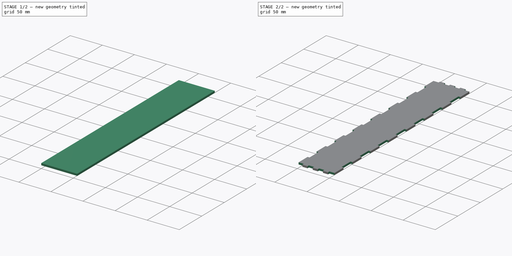
[diagram: build sequence overview — one tinted view per stage of 2, left to right]
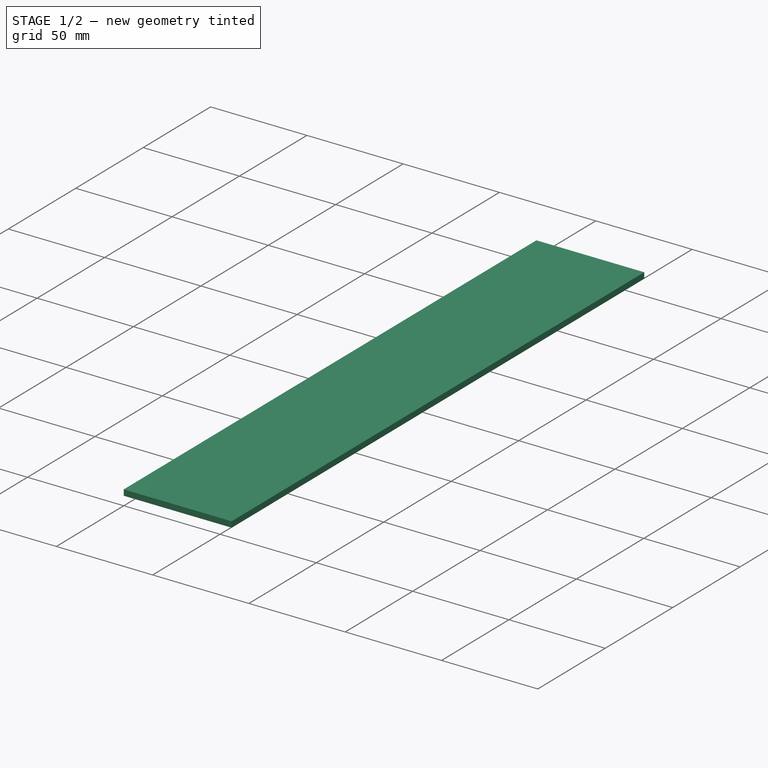
[diagram: stage 1 of 2 — iso view after this stage's code; geometry added in this stage tinted green]
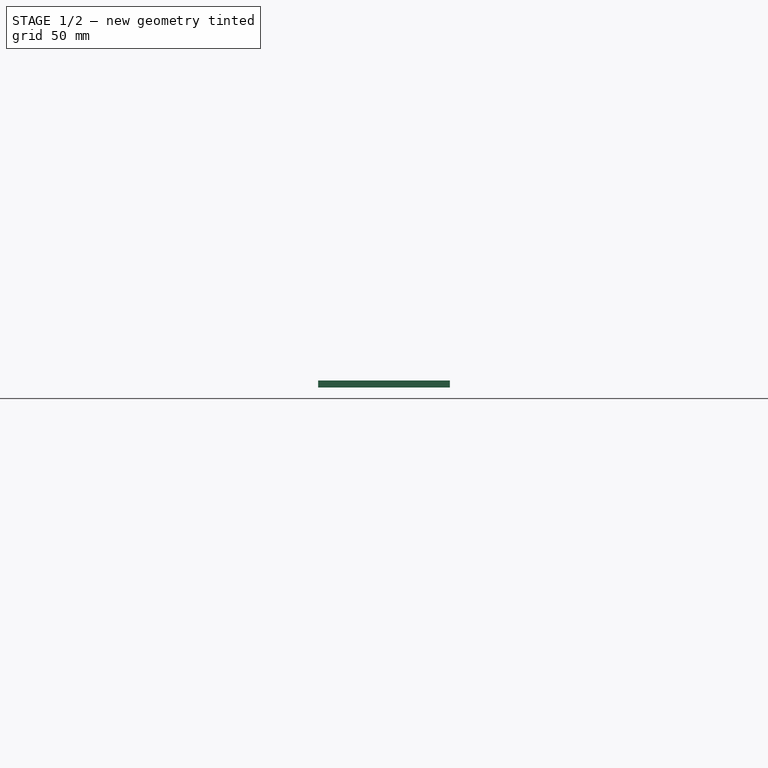
[diagram: stage 1 of 2 — front view after this stage's code; geometry added in this stage tinted green]
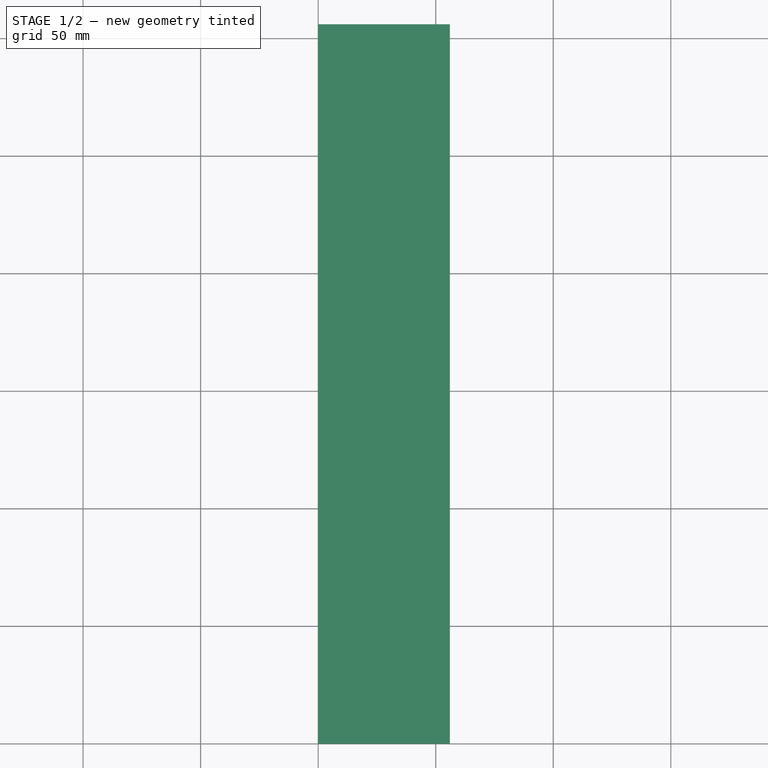
[diagram: stage 1 of 2 — top view after this stage's code; geometry added in this stage tinted green]
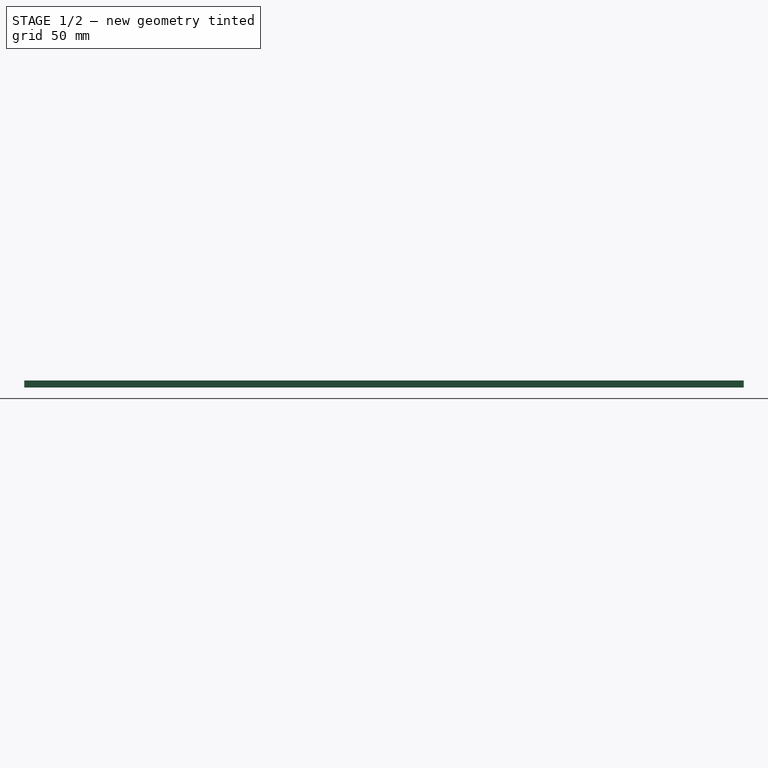
[diagram: stage 1 of 2 — right view after this stage's code; geometry added in this stage tinted green]
FCSTD DOCUMENT  (FreeCAD 0.19R24366 (Git))
Label: mdo-side
License: All rights reserved
LicenseURL: http://en.wikipedia.org/wiki/All_rights_reserved
objects: Sketcher::SketchObject×2, PartDesign::Pad×1, PartDesign::Pocket×1, PartDesign::Body×1, TechDraw::DrawSVGTemplate×1, TechDraw::DrawViewPart×1, TechDraw::DrawPage×1
note: 7 computed .brp shape members not serialized (recipe doc carries the construction recipe); baked Part::Feature solids carry a one-line shape summary decoded from their .brp

FEATURE [Sketcher::SketchObject] Sketch
  FullyConstrained = true
  MapMode = 5
  Support = -> [XY_Plane]
  sketch-geometry (4):
    g0: LineSegment StartX=0 StartY=0 StartZ=0 EndX=56 EndY=0 EndZ=0
    g1: LineSegment StartX=56 StartY=0 StartZ=0 EndX=56 EndY=306 EndZ=0
    g2: LineSegment StartX=56 StartY=306 StartZ=0 EndX=0 EndY=306 EndZ=0
    g3: LineSegment StartX=0 StartY=306 StartZ=0 EndX=0 EndY=0 EndZ=0
  constraints (11):
    c: Coincident(g0,g1)
    c: Coincident(g1,g2)
    c: Coincident(g2,g3)
    c: Coincident(g3,g0)
    c: Horizontal(g0)
    c: Horizontal(g2)
    c: Vertical(g1)
    c: Vertical(g3)
    c: Coincident(g0,g-1)
    c: DistanceX(g0,g0) = 56
    c: DistanceY(g1,g1) = 306
FEATURE [PartDesign::Pad] Pad
  Direction = (1,1,1)
  Length = 3
  Length2 = 100
  Profile = -> Sketch
  Type = 0
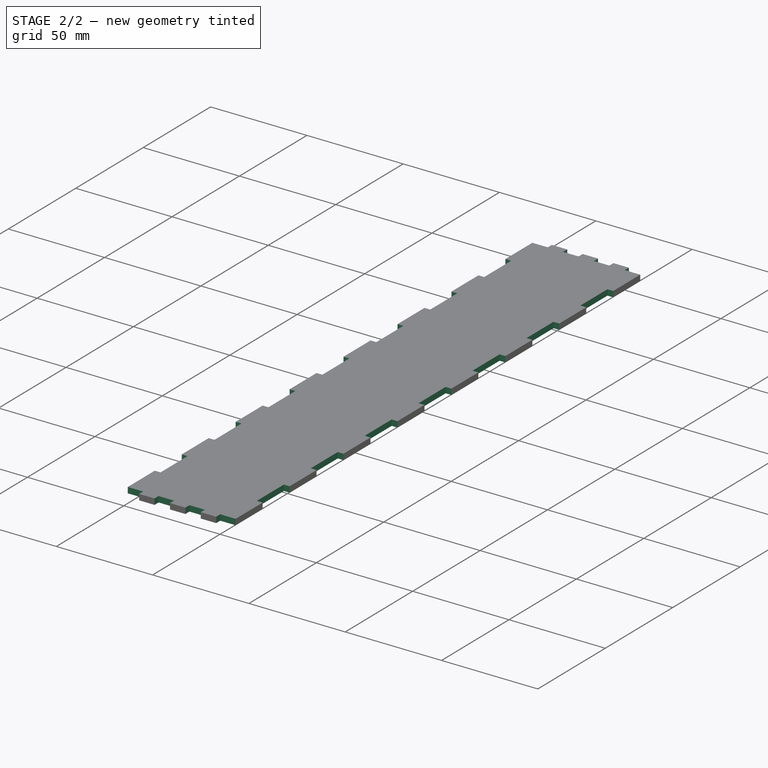
[diagram: stage 2 of 2 — iso view after this stage's code; geometry added in this stage tinted green]
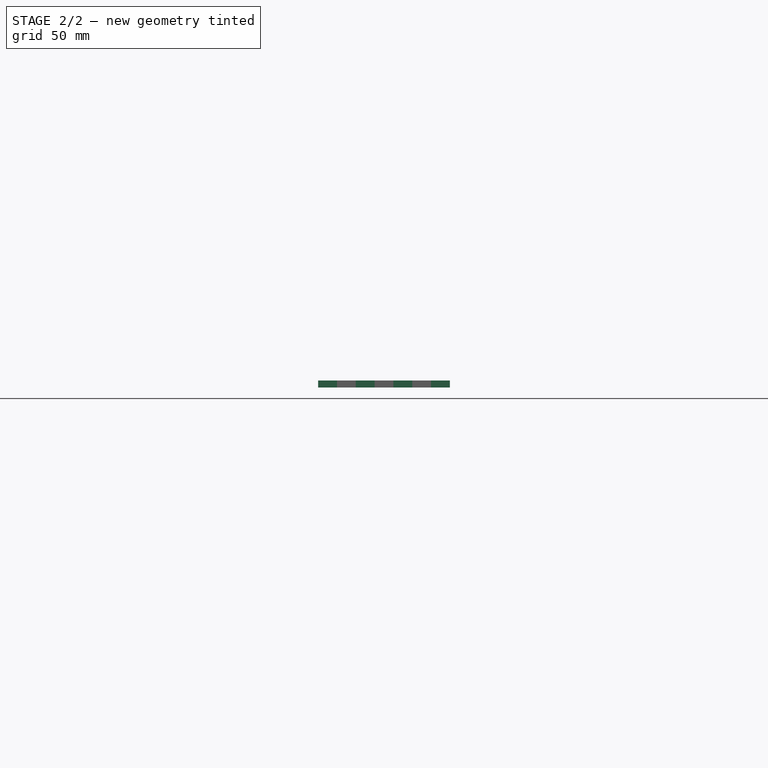
[diagram: stage 2 of 2 — front view after this stage's code; geometry added in this stage tinted green]
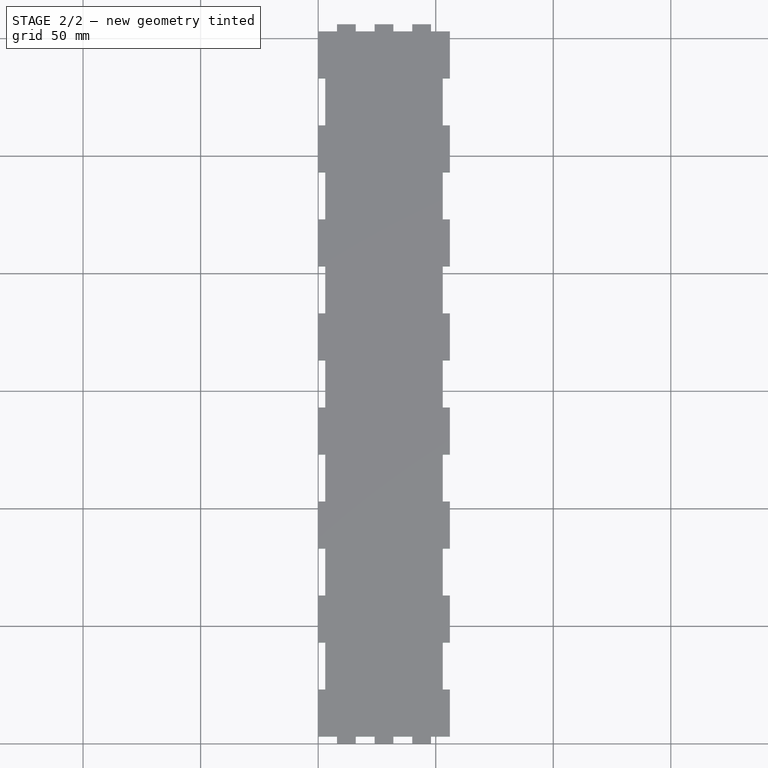
[diagram: stage 2 of 2 — top view after this stage's code; geometry added in this stage tinted green]
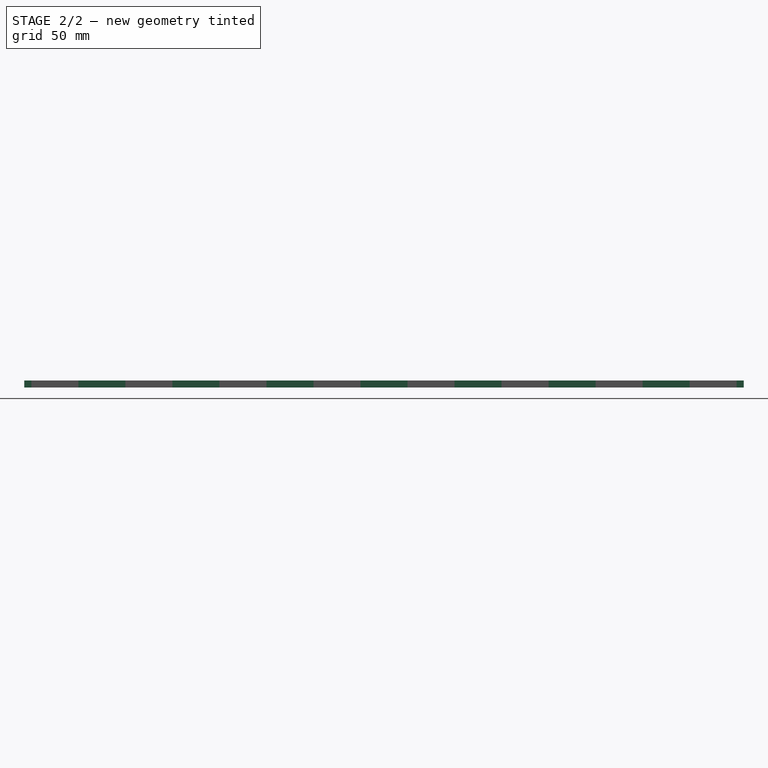
[diagram: stage 2 of 2 — right view after this stage's code; geometry added in this stage tinted green]
FEATURE [Sketcher::SketchObject] Sketch001
  FullyConstrained = true
  MapMode = 5
  Placement = pos=(0,0,3) rot=(0,0,1;0rad)
  Support = -> [Pad]
  sketch-geometry (108):
    g0: LineSegment StartX=0 StartY=3 StartZ=0 EndX=8 EndY=3 EndZ=0
    g1: LineSegment StartX=8 StartY=3 StartZ=0 EndX=8 EndY=0 EndZ=0
    g2: LineSegment StartX=8 StartY=0 StartZ=0 EndX=0 EndY=0 EndZ=0
    g3: LineSegment StartX=0 StartY=0 StartZ=0 EndX=0 EndY=3 EndZ=0
    g4: LineSegment StartX=16 StartY=3 StartZ=0 EndX=24 EndY=3 EndZ=0
    g5: LineSegment StartX=24 StartY=3 StartZ=0 EndX=24 EndY=0 EndZ=0
    g6: LineSegment StartX=24 StartY=0 StartZ=0 EndX=16 EndY=0 EndZ=0
    g7: LineSegment StartX=16 StartY=0 StartZ=0 EndX=16 EndY=3 EndZ=0
    g8: LineSegment StartX=0 StartY=3 StartZ=0 EndX=16 EndY=3 EndZ=0
    g9: LineSegment StartX=32 StartY=3 StartZ=0 EndX=40 EndY=3 EndZ=0
    g10: LineSegment StartX=40 StartY=3 StartZ=0 EndX=40 EndY=0 EndZ=0
    g11: LineSegment StartX=40 StartY=0 StartZ=0 EndX=32 EndY=0 EndZ=0
    g12: LineSegment StartX=32 StartY=0 StartZ=0 EndX=32 EndY=3 EndZ=0
    g13: LineSegment StartX=16 StartY=3 StartZ=0 EndX=32 EndY=3 EndZ=0
    g14: LineSegment StartX=48 StartY=3 StartZ=0 EndX=56 EndY=3 EndZ=0
    g15: LineSegment StartX=56 StartY=3 StartZ=0 EndX=56 EndY=0 EndZ=0
    g16: LineSegment StartX=56 StartY=0 StartZ=0 EndX=48 EndY=0 EndZ=0
    g17: LineSegment StartX=48 StartY=0 StartZ=0 EndX=48 EndY=3 EndZ=0
    g18: LineSegment StartX=32 StartY=3 StartZ=0 EndX=48 EndY=3 EndZ=0
    g19: LineSegment StartX=0 StartY=306 StartZ=0 EndX=8 EndY=306 EndZ=0
    g20: LineSegment StartX=8 StartY=306 StartZ=0 EndX=8 EndY=303 EndZ=0
    g21: LineSegment StartX=0 StartY=303 StartZ=0 EndX=0 EndY=306 EndZ=0
    g22: LineSegment StartX=16 StartY=306 StartZ=0 EndX=24 EndY=306 EndZ=0
    g23: LineSegment StartX=24 StartY=306 StartZ=0 EndX=24 EndY=303 EndZ=0
    g24: LineSegment StartX=24 StartY=303 StartZ=0 EndX=16 EndY=303 EndZ=0
    g25: LineSegment StartX=16 StartY=303 StartZ=0 EndX=16 EndY=306 EndZ=0
    g26: LineSegment StartX=0 StartY=306 StartZ=0 EndX=16 EndY=306 EndZ=0
    g27: LineSegment StartX=32 StartY=306 StartZ=0 EndX=40 EndY=306 EndZ=0
    g28: LineSegment StartX=40 StartY=306 StartZ=0 EndX=40 EndY=303 EndZ=0
    g29: LineSegment StartX=40 StartY=303 StartZ=0 EndX=32 EndY=303 EndZ=0
    g30: LineSegment StartX=32 StartY=303 StartZ=0 EndX=32 EndY=306 EndZ=0
    g31: LineSegment StartX=16 StartY=306 StartZ=0 EndX=32 EndY=306 EndZ=0
    g32: LineSegment StartX=48 StartY=306 StartZ=0 EndX=56 EndY=306 EndZ=0
    g33: LineSegment StartX=56 StartY=306 StartZ=0 EndX=56 EndY=303 EndZ=0
    g34: LineSegment StartX=48 StartY=303 StartZ=0 EndX=48 EndY=306 EndZ=0
    g35: LineSegment StartX=32 StartY=306 StartZ=0 EndX=48 EndY=306 EndZ=0
    g36: LineSegment StartX=3 StartY=3.01 StartZ=0 EndX=0 EndY=3.01 EndZ=0
    g37: LineSegment StartX=56 StartY=3.01 StartZ=0 EndX=53 EndY=3.01 EndZ=0
    g38: LineSegment StartX=0 StartY=303 StartZ=0 EndX=8 EndY=303 EndZ=0
    g39: LineSegment StartX=48 StartY=303 StartZ=0 EndX=56 EndY=303 EndZ=0
    g40: LineSegment StartX=0 StartY=43 StartZ=0 EndX=3 EndY=43 EndZ=0
    g41: LineSegment StartX=3 StartY=43 StartZ=0 EndX=3 EndY=23 EndZ=0
    g42: LineSegment StartX=3 StartY=23 StartZ=0 EndX=0 EndY=23 EndZ=0
    g43: LineSegment StartX=0 StartY=23 StartZ=0 EndX=0 EndY=43 EndZ=0
    g44: LineSegment StartX=2.4e-15 StartY=83 StartZ=0 EndX=3 EndY=83 EndZ=0
    g45: LineSegment StartX=3 StartY=83 StartZ=0 EndX=3 EndY=63 EndZ=0
    g46: LineSegment StartX=3 StartY=63 StartZ=0 EndX=2.7e-15 EndY=63 EndZ=0
    g47: LineSegment StartX=2.4e-15 StartY=63 StartZ=0 EndX=2.4e-15 EndY=83 EndZ=0
    g48: LineSegment StartX=0 StartY=43 StartZ=0 EndX=2.4e-15 EndY=83 EndZ=0
    g49: LineSegment StartX=4.9e-15 StartY=123 StartZ=0 EndX=3 EndY=123 EndZ=0
    g50: LineSegment StartX=3 StartY=123 StartZ=0 EndX=3 EndY=103 EndZ=0
    g51: LineSegment StartX=3 StartY=103 StartZ=0 EndX=4.9e-15 EndY=103 EndZ=0
    g52: LineSegment StartX=4.9e-15 StartY=103 StartZ=0 EndX=4.9e-15 EndY=123 EndZ=0
    g53: LineSegment StartX=2.4e-15 StartY=83 StartZ=0 EndX=4.9e-15 EndY=123 EndZ=0
    g54: LineSegment StartX=7.5e-15 StartY=163 StartZ=0 EndX=3 EndY=163 EndZ=0
    g55: LineSegment StartX=3 StartY=163 StartZ=0 EndX=3 EndY=143 EndZ=0
    g56: LineSegment StartX=3 StartY=143 StartZ=0 EndX=7.5e-15 EndY=143 EndZ=0
    g57: LineSegment StartX=7.5e-15 StartY=143 StartZ=0 EndX=7.5e-15 EndY=163 EndZ=0
    g58: LineSegment StartX=4.9e-15 StartY=123 StartZ=0 EndX=7.5e-15 EndY=163 EndZ=0
    g59: LineSegment StartX=9.8e-15 StartY=203 StartZ=0 EndX=3 EndY=203 EndZ=0
    g60: LineSegment StartX=3 StartY=203 StartZ=0 EndX=3 EndY=183 EndZ=0
    g61: LineSegment StartX=3 StartY=183 StartZ=0 EndX=9.8e-15 EndY=183 EndZ=0
    g62: LineSegment StartX=9.8e-15 StartY=183 StartZ=0 EndX=9.8e-15 EndY=203 EndZ=0
    g63: LineSegment StartX=7.5e-15 StartY=163 StartZ=0 EndX=9.8e-15 EndY=203 EndZ=0
    g64: LineSegment StartX=1.24e-14 StartY=243 StartZ=0 EndX=3 EndY=243 EndZ=0
    g65: LineSegment StartX=3 StartY=243 StartZ=0 EndX=3 EndY=223 EndZ=0
    g66: LineSegment StartX=3 StartY=223 StartZ=0 EndX=1.24e-14 EndY=223 EndZ=0
    g67: LineSegment StartX=1.24e-14 StartY=223 StartZ=0 EndX=1.24e-14 EndY=243 EndZ=0
    g68: LineSegment StartX=9.8e-15 StartY=203 StartZ=0 EndX=1.24e-14 EndY=243 EndZ=0
    g69: LineSegment StartX=1.47e-14 StartY=283 StartZ=0 EndX=3 EndY=283 EndZ=0
    g70: LineSegment StartX=3 StartY=283 StartZ=0 EndX=3 EndY=263 EndZ=0
    g71: LineSegment StartX=3 StartY=263 StartZ=0 EndX=1.47e-14 EndY=263 EndZ=0
    g72: LineSegment StartX=1.47e-14 StartY=263 StartZ=0 EndX=1.47e-14 EndY=283 EndZ=0
    g73: LineSegment StartX=1.24e-14 StartY=243 StartZ=0 EndX=1.47e-14 EndY=283 EndZ=0
    g74: LineSegment StartX=53 StartY=43 StartZ=0 EndX=56 EndY=43 EndZ=0
    g75: LineSegment StartX=56 StartY=43 StartZ=0 EndX=56 EndY=23 EndZ=0
    g76: LineSegment StartX=56 StartY=23 StartZ=0 EndX=53 EndY=23 EndZ=0
    g77: LineSegment StartX=53 StartY=23 StartZ=0 EndX=53 EndY=43 EndZ=0
    g78: LineSegment StartX=53 StartY=83 StartZ=0 EndX=56 EndY=83 EndZ=0
    g79: LineSegment StartX=56 StartY=83 StartZ=0 EndX=56 EndY=63 EndZ=0
    g80: LineSegment StartX=56 StartY=63 StartZ=0 EndX=53 EndY=63 EndZ=0
    g81: LineSegment StartX=53 StartY=63 StartZ=0 EndX=53 EndY=83 EndZ=0
    g82: LineSegment StartX=53 StartY=43 StartZ=0 EndX=53 EndY=83 EndZ=0
    g83: LineSegment StartX=53 StartY=123 StartZ=0 EndX=56 EndY=123 EndZ=0
    g84: LineSegment StartX=56 StartY=123 StartZ=0 EndX=56 EndY=103 EndZ=0
    g85: LineSegment StartX=56 StartY=103 StartZ=0 EndX=53 EndY=103 EndZ=0
    g86: LineSegment StartX=53 StartY=103 StartZ=0 EndX=53 EndY=123 EndZ=0
    g87: LineSegment StartX=53 StartY=83 StartZ=0 EndX=53 EndY=123 EndZ=0
    g88: LineSegment StartX=53 StartY=163 StartZ=0 EndX=56 EndY=163 EndZ=0
    g89: LineSegment StartX=56 StartY=163 StartZ=0 EndX=56 EndY=143 EndZ=0
    g90: LineSegment StartX=56 StartY=143 StartZ=0 EndX=53 EndY=143 EndZ=0
    g91: LineSegment StartX=53 StartY=143 StartZ=0 EndX=53 EndY=163 EndZ=0
    g92: LineSegment StartX=53 StartY=123 StartZ=0 EndX=53 EndY=163 EndZ=0
    g93: LineSegment StartX=53 StartY=203 StartZ=0 EndX=56 EndY=203 EndZ=0
    g94: LineSegment StartX=56 StartY=203 StartZ=0 EndX=56 EndY=183 EndZ=0
    g95: LineSegment StartX=56 StartY=183 StartZ=0 EndX=53 EndY=183 EndZ=0
    g96: LineSegment StartX=53 StartY=183 StartZ=0 EndX=53 EndY=203 EndZ=0
    g97: LineSegment StartX=53 StartY=163 StartZ=0 EndX=53 EndY=203 EndZ=0
    g98: LineSegment StartX=53 StartY=243 StartZ=0 EndX=56 EndY=243 EndZ=0
    g99: LineSegment StartX=56 StartY=243 StartZ=0 EndX=56 EndY=223 EndZ=0
    g100: LineSegment StartX=56 StartY=223 StartZ=0 EndX=53 EndY=223 EndZ=0
    g101: LineSegment StartX=53 StartY=223 StartZ=0 EndX=53 EndY=243 EndZ=0
    g102: LineSegment StartX=53 StartY=203 StartZ=0 EndX=53 EndY=243 EndZ=0
    g103: LineSegment StartX=53 StartY=283 StartZ=0 EndX=56 EndY=283 EndZ=0
    g104: LineSegment StartX=56 StartY=283 StartZ=0 EndX=56 EndY=263 EndZ=0
    g105: LineSegment StartX=56 StartY=263 StartZ=0 EndX=53 EndY=263 EndZ=0
    g106: LineSegment StartX=53 StartY=263 StartZ=0 EndX=53 EndY=283 EndZ=0
    g107: LineSegment StartX=53 StartY=243 StartZ=0 EndX=53 EndY=283 EndZ=0
  constraints (308):
    c: Coincident(g0,g1)
    c: Coincident(g1,g2)
    c: Coincident(g2,g3)
    c: Coincident(g3,g0)
    c: Horizontal(g0)
    c: Horizontal(g2)
    c: Vertical(g1)
    c: Vertical(g3)
    c: DistanceY(g1,g1) = 3
    c: DistanceX(g0,g0) = 8
    c: DistanceX(g-1,g2) = 0
    c: DistanceY(g-1,g2) = 0
    c: Coincident(g4,g5)
    c: Coincident(g5,g6)
    c: Coincident(g6,g7)
    c: Coincident(g7,g4)
    c: Horizontal(g4)
    c: Horizontal(g6)
    c: Vertical(g5)
    c: Vertical(g7)
    c: Equal(g1,g5) = 3
    c: Equal(g0,g4) = 8
    c: Coincident(g0,g8)
    c: Coincident(g4,g8)
    c: Distance(g8) = 16
    c: Angle(g8) = 0
    c: Coincident(g9,g10)
    c: Coincident(g10,g11)
    c: Coincident(g11,g12)
    c: Coincident(g12,g9)
    c: Horizontal(g9)
    c: Horizontal(g11)
    c: Vertical(g10)
    c: Vertical(g12)
    c: Equal(g1,g10) = 3
    c: Equal(g0,g9) = 8
    c: Coincident(g4,g13)
    c: Coincident(g9,g13)
    c: Equal(g8,g13)
    c: Parallel(g13,g8)
    c: Coincident(g14,g15)
    c: Coincident(g15,g16)
    c: Coincident(g16,g17)
    c: Coincident(g17,g14)
    c: Horizontal(g14)
    c: Horizontal(g16)
    c: Vertical(g15)
    c: Vertical(g17)
    c: Equal(g1,g15) = 3
    c: Equal(g0,g14) = 8
    c: Coincident(g9,g18)
    c: Coincident(g14,g18)
    c: Equal(g8,g18)
    c: Parallel(g18,g8)
    c: Coincident(g19,g20)
    c: Coincident(g21,g19)
    c: Horizontal(g19)
    c: Vertical(g20)
    c: Vertical(g21)
    c: Equal(g1,g20) = 3
    c: Equal(g0,g19) = 8
    c: Coincident(g22,g23)
    c: Coincident(g23,g24)
    c: Coincident(g24,g25)
    c: Coincident(g25,g22)
    c: Horizontal(g22)
    c: Horizontal(g24)
    c: Vertical(g23)
    c: Vertical(g25)
    c: Equal(g20,g23) = 3
    c: Equal(g19,g22) = 8
    c: Coincident(g19,g26)
    c: Coincident(g22,g26)
    c: Equal(g8,g26) = 16
    c: Parallel(g8,g26)
    c: Coincident(g27,g28)
    c: Coincident(g28,g29)
    c: Coincident(g29,g30)
    c: Coincident(g30,g27)
    c: Horizontal(g27)
    c: Horizontal(g29)
    c: Vertical(g28)
    c: Vertical(g30)
    c: Equal(g20,g28) = 3
    c: Equal(g19,g27) = 8
    c: Coincident(g22,g31)
    c: Coincident(g27,g31)
    c: Equal(g26,g31)
    c: Parallel(g31,g26)
    c: Coincident(g32,g33)
    c: Coincident(g34,g32)
    c: Horizontal(g32)
    c: Vertical(g33)
    c: Vertical(g34)
    c: Equal(g20,g33) = 3
    c: Equal(g19,g32) = 8
    c: Coincident(g27,g35)
    c: Coincident(g32,g35)
    c: Equal(g26,g35)
    c: Parallel(g35,g26)
    c: DistanceX(g2,g19) = 0
    c: DistanceY(g2,g19) = 306
    c: Horizontal(g36)
    c: DistanceX(g36,g36) = 3
    c: DistanceX(g0,g36) = 0
    c: DistanceY(g0,g36) = 0.01
    c: Horizontal(g37)
    c: Equal(g36,g37) = 3
    c: DistanceY(g36,g37) = 0
    c: DistanceX(g14,g37) = 0
    c: Coincident(g38,g21)
    c: Coincident(g38,g20)
    c: Horizontal(g38)
    c: Coincident(g39,g34)
    c: Coincident(g39,g33)
    c: Horizontal(g39)
    c: Coincident(g40,g41)
    c: Coincident(g41,g42)
    c: Coincident(g42,g43)
    c: Coincident(g43,g40)
    c: Horizontal(g40)
    c: Horizontal(g42)
    c: Vertical(g41)
    c: Vertical(g43)
    c: PointOnObject(g40,g-2)
    c: DistanceX(g42,g42) = 3
    c: DistanceY(g41,g41) = 20
    c: DistanceY(g0,g42) = 20
    c: Coincident(g44,g45)
    c: Coincident(g45,g46)
    c: Coincident(g46,g47)
    c: Coincident(g47,g44)
    c: Horizontal(g44)
    c: Horizontal(g46)
    c: Vertical(g45)
    c: Vertical(g47)
    c: Equal(g42,g46) = 3
    c: Equal(g41,g45) = 20
    c: Coincident(g40,g48)
    c: Coincident(g44,g48)
    c: Distance(g48) = 40
    c: Angle(g48) = 1.5708
    c: Coincident(g49,g50)
    c: Coincident(g50,g51)
    c: Coincident(g51,g52)
    c: Coincident(g52,g49)
    c: Horizontal(g49)
    c: Horizontal(g51)
    c: Vertical(g50)
    c: Vertical(g52)
    c: Equal(g42,g51) = 3
    c: Equal(g41,g50) = 20
    c: Coincident(g44,g53)
    c: Coincident(g49,g53)
    c: Equal(g48,g53)
    c: Parallel(g53,g48)
    c: Coincident(g54,g55)
    c: Coincident(g55,g56)
    c: Coincident(g56,g57)
    c: Coincident(g57,g54)
    c: Horizontal(g54)
    c: Horizontal(g56)
    c: Vertical(g55)
    c: Vertical(g57)
    c: Equal(g42,g56) = 3
    c: Equal(g41,g55) = 20
    c: Coincident(g49,g58)
    c: Coincident(g54,g58)
    c: Equal(g48,g58)
    c: Parallel(g58,g48)
    c: Coincident(g59,g60)
    c: Coincident(g60,g61)
    c: Coincident(g61,g62)
    c: Coincident(g62,g59)
    c: Horizontal(g59)
    c: Horizontal(g61)
    c: Vertical(g60)
    c: Vertical(g62)
    c: Equal(g42,g61) = 3
    c: Equal(g41,g60) = 20
    c: Coincident(g54,g63)
    c: Coincident(g59,g63)
    c: Equal(g48,g63)
    c: Parallel(g63,g48)
    c: Coincident(g64,g65)
    c: Coincident(g65,g66)
    c: Coincident(g66,g67)
    c: Coincident(g67,g64)
    c: Horizontal(g64)
    c: Horizontal(g66)
    c: Vertical(g65)
    c: Vertical(g67)
    c: Equal(g42,g66) = 3
    c: Equal(g41,g65) = 20
    c: Coincident(g59,g68)
    c: Coincident(g64,g68)
    c: Equal(g48,g68)
    c: Parallel(g68,g48)
    c: Coincident(g69,g70)
    c: Coincident(g70,g71)
    c: Coincident(g71,g72)
    c: Coincident(g72,g69)
    c: Horizontal(g69)
    c: Horizontal(g71)
    c: Vertical(g70)
    c: Vertical(g72)
    c: Equal(g42,g71) = 3
    c: Equal(g41,g70) = 20
    c: Coincident(g64,g73)
    c: Coincident(g69,g73)
    c: Equal(g48,g73)
    c: Parallel(g73,g48)
    c: Coincident(g74,g75)
    c: Coincident(g75,g76)
    c: Coincident(g76,g77)
    c: Coincident(g77,g74)
    c: Horizontal(g74)
    c: Horizontal(g76)
    c: Vertical(g75)
    c: Vertical(g77)
    c: Equal(g42,g76) = 3
    c: Equal(g41,g75) = 20
    c: Coincident(g78,g79)
    c: Coincident(g79,g80)
    c: Coincident(g80,g81)
    c: Coincident(g81,g78)
    c: Horizontal(g78)
    c: Horizontal(g80)
    c: Vertical(g79)
    c: Vertical(g81)
    c: Equal(g76,g80) = 3
    c: Equal(g75,g79) = 20
    c: Coincident(g74,g82)
    c: Coincident(g78,g82)
    c: Equal(g48,g82) = 40
    c: Parallel(g48,g82) = 1.5708
    c: Coincident(g83,g84)
    c: Coincident(g84,g85)
    c: Coincident(g85,g86)
    c: Coincident(g86,g83)
    c: Horizontal(g83)
    c: Horizontal(g85)
    c: Vertical(g84)
    c: Vertical(g86)
    c: Equal(g76,g85) = 3
    c: Equal(g75,g84) = 20
    c: Coincident(g78,g87)
    c: Coincident(g83,g87)
    c: Equal(g82,g87)
    c: Parallel(g87,g82)
    c: Coincident(g88,g89)
    c: Coincident(g89,g90)
    c: Coincident(g90,g91)
    c: Coincident(g91,g88)
    c: Horizontal(g88)
    c: Horizontal(g90)
    c: Vertical(g89)
    c: Vertical(g91)
    c: Equal(g76,g90) = 3
    c: Equal(g75,g89) = 20
    c: Coincident(g83,g92)
    c: Coincident(g88,g92)
    c: Equal(g82,g92)
    c: Parallel(g92,g82)
    c: Coincident(g93,g94)
    c: Coincident(g94,g95)
    c: Coincident(g95,g96)
    c: Coincident(g96,g93)
    c: Horizontal(g93)
    c: Horizontal(g95)
    c: Vertical(g94)
    c: Vertical(g96)
    c: Equal(g76,g95) = 3
    c: Equal(g75,g94) = 20
    c: Coincident(g88,g97)
    c: Coincident(g93,g97)
    c: Equal(g82,g97)
    c: Parallel(g97,g82)
    c: Coincident(g98,g99)
    c: Coincident(g99,g100)
    c: Coincident(g100,g101)
    c: Coincident(g101,g98)
    c: Horizontal(g98)
    c: Horizontal(g100)
    c: Vertical(g99)
    c: Vertical(g101)
    c: Equal(g76,g100) = 3
    c: Equal(g75,g99) = 20
    c: Coincident(g93,g102)
    c: Coincident(g98,g102)
    c: Equal(g82,g102)
    c: Parallel(g102,g82)
    c: Coincident(g103,g104)
    c: Coincident(g104,g105)
    c: Coincident(g105,g106)
    c: Coincident(g106,g103)
    c: Horizontal(g103)
    c: Horizontal(g105)
    c: Vertical(g104)
    c: Vertical(g106)
    c: Equal(g76,g105) = 3
    c: Equal(g75,g104) = 20
    c: Coincident(g98,g107)
    c: Coincident(g103,g107)
    c: Equal(g82,g107)
    c: Parallel(g107,g82)
    c: DistanceX(g75,g14) = 0
    c: DistanceY(g76,g41) = 0
FEATURE [PartDesign::Pocket] Pocket
  BaseFeature = -> Pad
  Length = 5
  Length2 = 100
  Profile = -> Sketch001
  Type = 1
FEATURE [PartDesign::Body] Body
  Group = -> [Sketch,Pad,Sketch001,Pocket]
  Origin = -> Origin
  Tip = -> Pocket
FEATURE [TechDraw::DrawSVGTemplate] Template
  EditableTexts = AUTHOR_NAME=AUTHOR NAME; DN=DN; DRAWING_TITLE=DRAWING TITLE; FC-DATE=DD/MM/YYYY; FC-REV=REV A; FC-SC=SCALE; FC-SH=X / Y; FC-SI=A2; FreeCAD_DRAWING=FreeCAD DRAWING; PN=PN
  Height = 420
  Orientation = 1
  Width = 594
FEATURE [TechDraw::DrawViewPart] View
  CoarseView = false
  Direction = (0,0,1)
  Focus = 100
  HardHidden = false
  IsoCount = 0
  IsoHidden = false
  IsoVisible = false
  LockPosition = false
  Perspective = false
  Rotation = 0
  ScaleType = 0
  SeamHidden = false
  SeamVisible = true
  SmoothHidden = false
  SmoothVisible = true
  Source = -> [Body]
  X = 297
  XDirection = (1,0,0)
  Y = 210
FEATURE [TechDraw::DrawPage] Page
  KeepUpdated = true
  NextBalloonIndex = 1
  ProjectionType = 0
  Template = -> Template
  Views = -> [View]
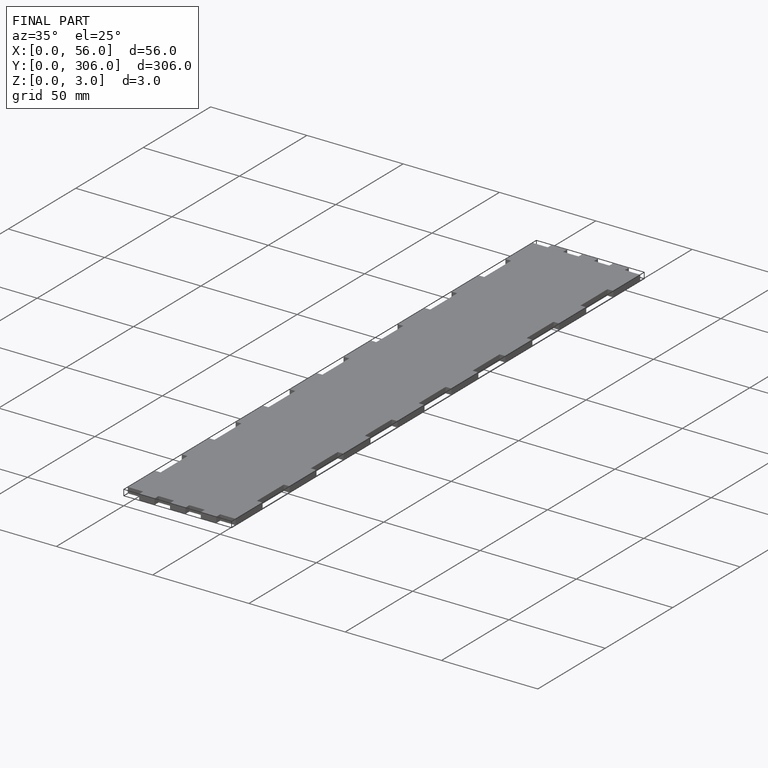
[diagram: finished part — iso view with bounding-box wireframe]
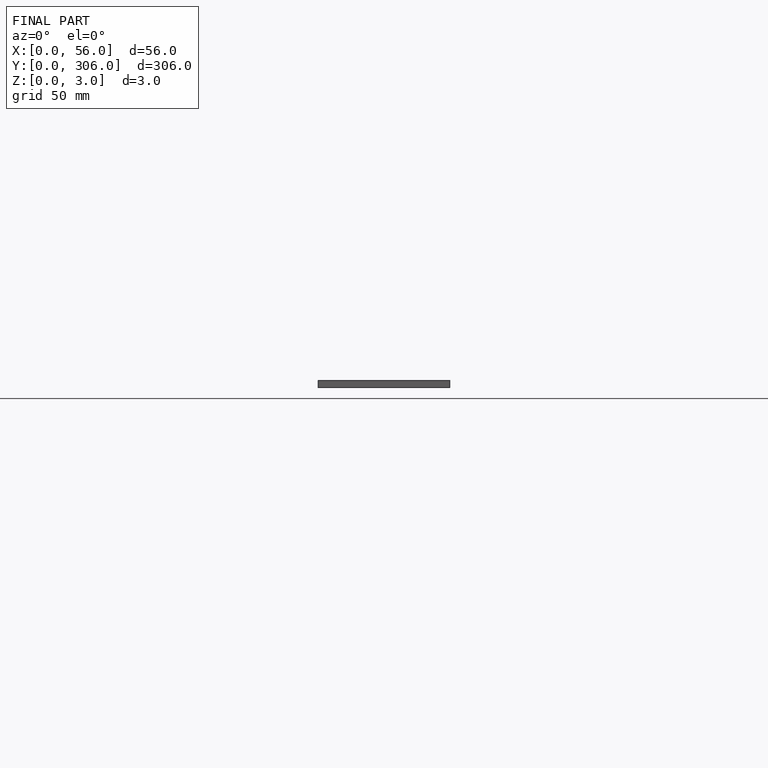
[diagram: finished part — front view with bounding-box wireframe]
